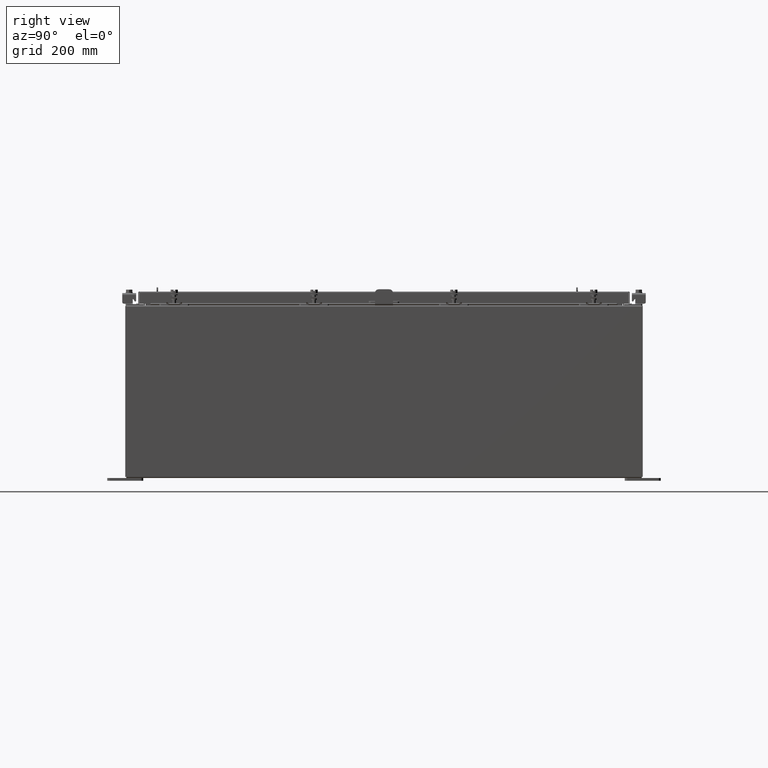
[diagram: clean part render]
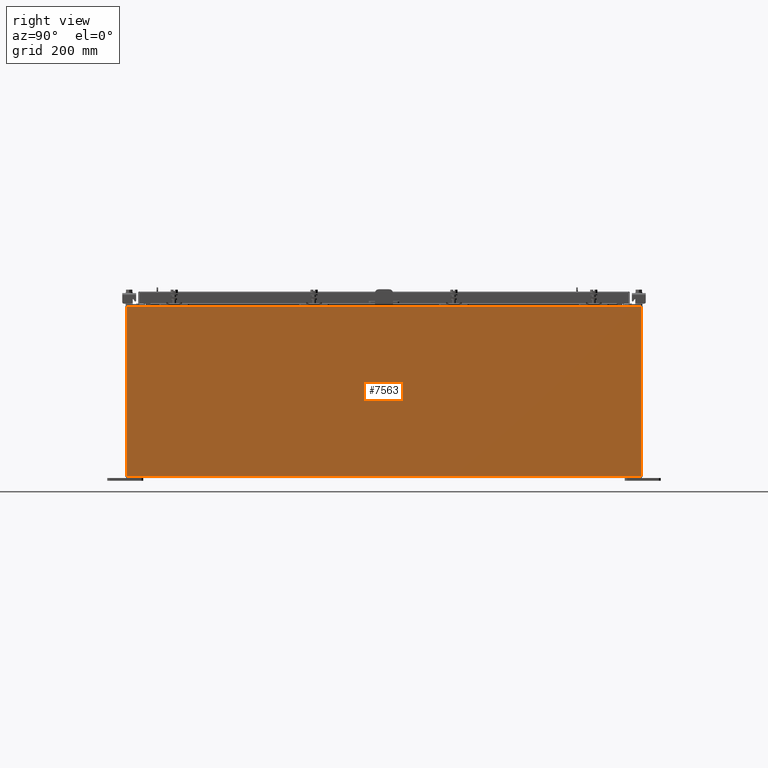
[diagram: same view with one face highlighted and labeled with its STEP entity id]
A machine part, right view. The second image highlights one B-rep face of the part: STEP entity #7563.
In plain terms, the highlighted planar face has unit normal (-1, 0, 0).
Its self-contained STEP definition (entity closure, byte-faithful):
#78 = DIRECTION ( 'NONE',  ( -0.0000000000000000000, -1.000000000000000000, -0.0000000000000000000 ) ) ;
#239 = CARTESIAN_POINT ( 'NONE',  ( 14.99999999999999800, 0.0000000000000000000, -5.245148147835385400E-014 ) ) ;
#472 = EDGE_CURVE ( 'NONE', #6972, #14384, #21957, .T. ) ;
#497 = CARTESIAN_POINT ( 'NONE',  ( 14.99999999999999800, -17.92530000000000000, 0.01300000000000010700 ) ) ;
#1228 = VECTOR ( 'NONE', #3387, 39.37007874015748100 ) ;
#2603 = ORIENTED_EDGE ( 'NONE', *, *, #18137, .T. ) ;
#3028 = VECTOR ( 'NONE', #13109, 39.37007874015748100 ) ;
#3387 = DIRECTION ( 'NONE',  ( 3.482016343714355500E-015, -1.832640180902292400E-016, 1.000000000000000000 ) ) ;
#4052 = DIRECTION ( 'NONE',  ( 3.482016343714355100E-015, 0.0000000000000000000, 1.000000000000000000 ) ) ;
#5286 = CARTESIAN_POINT ( 'NONE',  ( 14.99999999999999800, 17.92530000000000000, -4.917326388595673900E-014 ) ) ;
#6291 = ORIENTED_EDGE ( 'NONE', *, *, #6878, .F. ) ;
#6878 = EDGE_CURVE ( 'NONE', #6972, #15914, #8081, .T. ) ;
#6972 = VERTEX_POINT ( 'NONE', #22725 ) ;
#7322 = EDGE_CURVE ( 'NONE', #9812, #15914, #9804, .T. ) ;
#7563 = ADVANCED_FACE ( 'NONE', ( #16324 ), #9672, .F. ) ;
#8081 = LINE ( 'NONE', #22563, #3028 ) ;
#9099 = CARTESIAN_POINT ( 'NONE',  ( 14.99999999999999800, -17.92530000000000000, -5.245148147835385400E-014 ) ) ;
#9672 = PLANE ( 'NONE',  #23121 ) ;
#9804 = LINE ( 'NONE', #9099, #14245 ) ;
#9812 = VERTEX_POINT ( 'NONE', #18304 ) ;
#12894 = DIRECTION ( 'NONE',  ( -3.482016343714355500E-015, 0.0000000000000000000, -1.000000000000000000 ) ) ;
#13109 = DIRECTION ( 'NONE',  ( 2.122662239958547800E-031, -1.000000000000000000, 6.096072018129156600E-017 ) ) ;
#14245 = VECTOR ( 'NONE', #12894, 39.37007874015748100 ) ;
#14384 = VERTEX_POINT ( 'NONE', #18230 ) ;
#15383 = DIRECTION ( 'NONE',  ( -1.000000000000000000, 0.0000000000000000000, 3.482016343714355100E-015 ) ) ;
#15615 = VECTOR ( 'NONE', #78, 39.37007874015748100 ) ;
#15914 = VERTEX_POINT ( 'NONE', #497 ) ;
#16324 = FACE_OUTER_BOUND ( 'NONE', #18094, .T. ) ;
#18094 = EDGE_LOOP ( 'NONE', ( #2603, #21000, #6291, #23740 ) ) ;
#18137 = EDGE_CURVE ( 'NONE', #14384, #9812, #20669, .T. ) ;
#18230 = CARTESIAN_POINT ( 'NONE',  ( 15.00000000000004100, 17.92530000000000000, 11.83760000000000000 ) ) ;
#18304 = CARTESIAN_POINT ( 'NONE',  ( 15.00000000000004100, -17.92530000000000000, 11.83760000000000000 ) ) ;
#20669 = LINE ( 'NONE', #22839, #15615 ) ;
#21000 = ORIENTED_EDGE ( 'NONE', *, *, #7322, .T. ) ;
#21957 = LINE ( 'NONE', #5286, #1228 ) ;
#22563 = CARTESIAN_POINT ( 'NONE',  ( 14.99999999999999800, -17.92530000000000000, 0.01300000000000010700 ) ) ;
#22725 = CARTESIAN_POINT ( 'NONE',  ( 14.99999999999999800, 17.92530000000000000, 0.01299999999999792100 ) ) ;
#22839 = CARTESIAN_POINT ( 'NONE',  ( 15.00000000000004100, 17.92530000000000000, 11.83760000000000000 ) ) ;
#23121 = AXIS2_PLACEMENT_3D ( 'NONE', #239, #15383, #4052 ) ;
#23740 = ORIENTED_EDGE ( 'NONE', *, *, #472, .T. ) ;